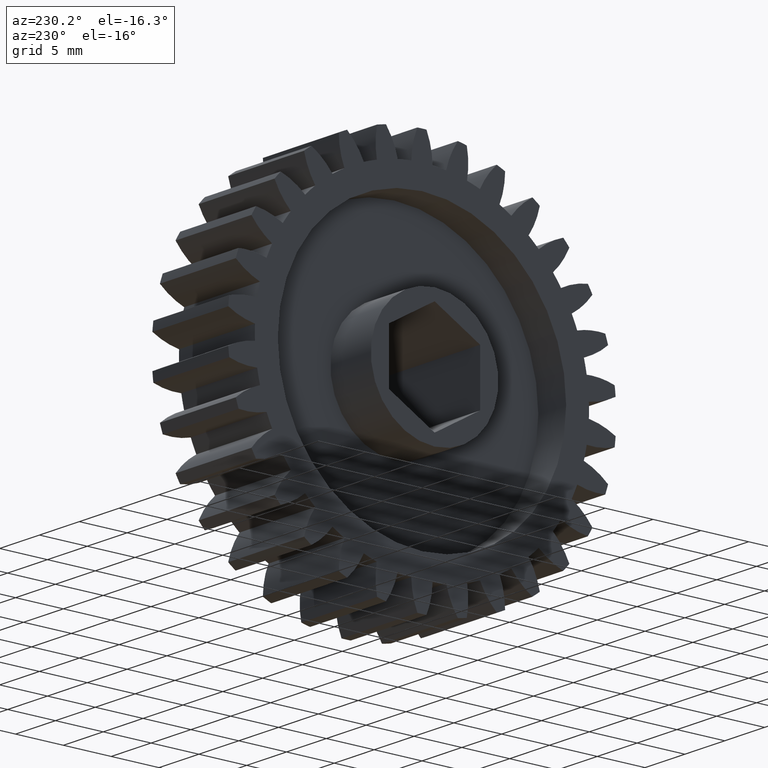
[diagram: clean part render]
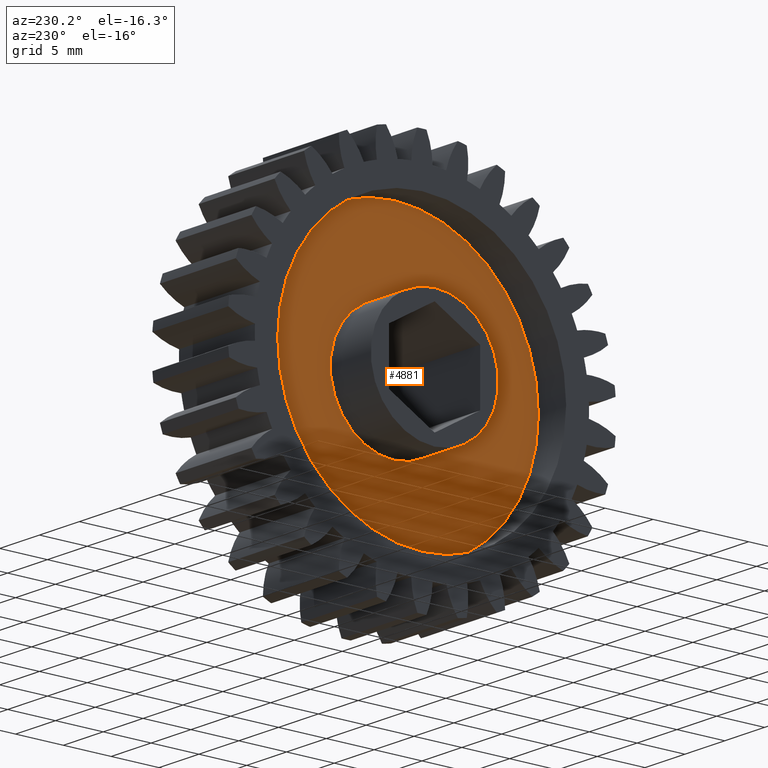
[diagram: same view with one face highlighted and labeled with its STEP entity id]
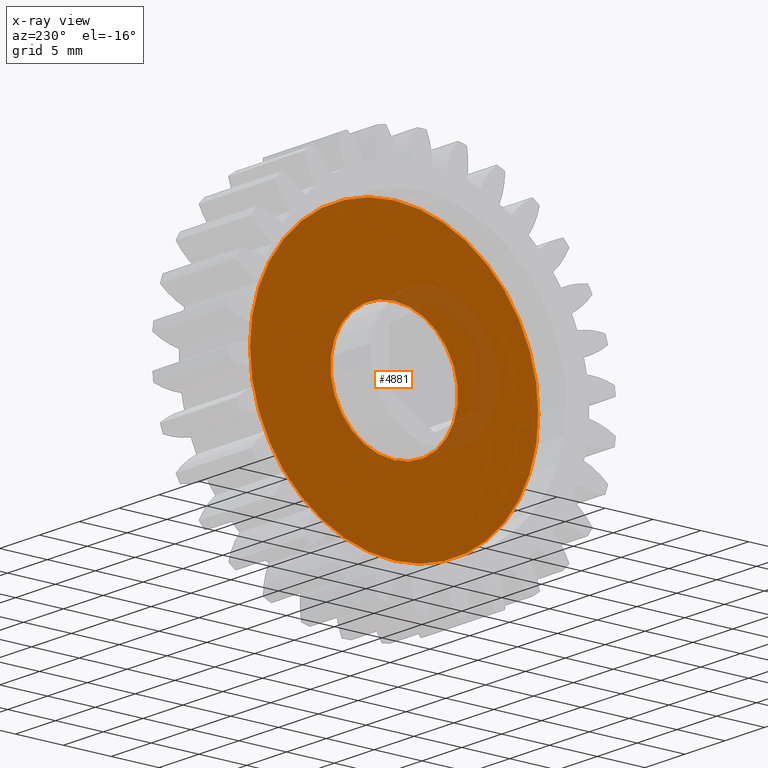
[diagram: x-ray of the same camera — body ghosted, the highlighted face saturated]
A machine part, auxiliary view. The second image highlights one B-rep face of the part: STEP entity #4881.
The next image is the same camera in x-ray: the body ghosted, the highlighted face saturated — about 7% of this face is hidden behind the body in this view.
In plain terms, the highlighted planar face has unit normal (1, -0, 0).
Its self-contained STEP definition (entity closure, byte-faithful):
#286 = EDGE_LOOP ( 'NONE', ( #3898, #4016 ) ) ;
#380 = CARTESIAN_POINT ( 'NONE',  ( 0.1375000000000000100, 7.271340369937410500E-017, -0.5937500000000000000 ) ) ;
#396 = AXIS2_PLACEMENT_3D ( 'NONE', #4599, #1832, #4604 ) ;
#439 = EDGE_CURVE ( 'NONE', #1454, #2017, #975, .T. ) ;
#668 = VERTEX_POINT ( 'NONE', #1508 ) ;
#888 = CARTESIAN_POINT ( 'NONE',  ( 0.1375000000000000100, 3.214697847761801800E-017, 0.2625000000000000100 ) ) ;
#945 = EDGE_CURVE ( 'NONE', #2017, #1454, #4955, .T. ) ;
#975 = CIRCLE ( 'NONE', #396, 0.5937500000000000000 ) ;
#1422 = AXIS2_PLACEMENT_3D ( 'NONE', #4724, #4809, #4672 ) ;
#1454 = VERTEX_POINT ( 'NONE', #380 ) ;
#1508 = CARTESIAN_POINT ( 'NONE',  ( 0.1375000000000000100, 0.0000000000000000000, -0.2625000000000000100 ) ) ;
#1832 = DIRECTION ( 'NONE',  ( 1.000000000000000000, -0.0000000000000000000, 0.0000000000000000000 ) ) ;
#1868 = EDGE_CURVE ( 'NONE', #2298, #668, #4757, .T. ) ;
#1921 = EDGE_CURVE ( 'NONE', #668, #2298, #4362, .T. ) ;
#2017 = VERTEX_POINT ( 'NONE', #3396 ) ;
#2298 = VERTEX_POINT ( 'NONE', #888 ) ;
#2569 = FACE_OUTER_BOUND ( 'NONE', #286, .T. ) ;
#3396 = CARTESIAN_POINT ( 'NONE',  ( 0.1375000000000000100, 0.0000000000000000000, 0.5937500000000000000 ) ) ;
#3612 = DIRECTION ( 'NONE',  ( 0.0000000000000000000, 0.0000000000000000000, -1.000000000000000000 ) ) ;
#3621 = DIRECTION ( 'NONE',  ( 1.000000000000000000, -0.0000000000000000000, 0.0000000000000000000 ) ) ;
#3630 = CARTESIAN_POINT ( 'NONE',  ( 0.1375000000000000100, 0.0000000000000000000, 0.0000000000000000000 ) ) ;
#3845 = EDGE_LOOP ( 'NONE', ( #4087, #4178 ) ) ;
#3898 = ORIENTED_EDGE ( 'NONE', *, *, #945, .F. ) ;
#4016 = ORIENTED_EDGE ( 'NONE', *, *, #439, .F. ) ;
#4079 = DIRECTION ( 'NONE',  ( 0.0000000000000000000, 0.0000000000000000000, -1.000000000000000000 ) ) ;
#4087 = ORIENTED_EDGE ( 'NONE', *, *, #1921, .T. ) ;
#4091 = DIRECTION ( 'NONE',  ( 1.000000000000000000, -0.0000000000000000000, 0.0000000000000000000 ) ) ;
#4095 = CARTESIAN_POINT ( 'NONE',  ( 0.1375000000000000100, 0.0000000000000000000, 0.0000000000000000000 ) ) ;
#4153 = AXIS2_PLACEMENT_3D ( 'NONE', #4095, #4091, #4079 ) ;
#4177 = AXIS2_PLACEMENT_3D ( 'NONE', #4495, #4482, #4463 ) ;
#4178 = ORIENTED_EDGE ( 'NONE', *, *, #1868, .T. ) ;
#4362 = CIRCLE ( 'NONE', #4153, 0.2625000000000000100 ) ;
#4463 = DIRECTION ( 'NONE',  ( 0.0000000000000000000, 0.0000000000000000000, -1.000000000000000000 ) ) ;
#4482 = DIRECTION ( 'NONE',  ( 1.000000000000000000, -0.0000000000000000000, 0.0000000000000000000 ) ) ;
#4495 = CARTESIAN_POINT ( 'NONE',  ( 0.1375000000000000100, 0.0000000000000000000, 0.0000000000000000000 ) ) ;
#4599 = CARTESIAN_POINT ( 'NONE',  ( 0.1375000000000000100, 0.0000000000000000000, 0.0000000000000000000 ) ) ;
#4604 = DIRECTION ( 'NONE',  ( 0.0000000000000000000, 0.0000000000000000000, -1.000000000000000000 ) ) ;
#4672 = DIRECTION ( 'NONE',  ( 0.0000000000000000000, 0.0000000000000000000, -1.000000000000000000 ) ) ;
#4678 = PLANE ( 'NONE',  #1422 ) ;
#4724 = CARTESIAN_POINT ( 'NONE',  ( 0.1375000000000000100, 0.0000000000000000000, 0.0000000000000000000 ) ) ;
#4757 = CIRCLE ( 'NONE', #4177, 0.2625000000000000100 ) ;
#4809 = DIRECTION ( 'NONE',  ( 1.000000000000000000, -0.0000000000000000000, 0.0000000000000000000 ) ) ;
#4881 = ADVANCED_FACE ( 'NONE', ( #2569, #4884 ), #4678, .F. ) ;
#4884 = FACE_BOUND ( 'NONE', #3845, .T. ) ;
#4955 = CIRCLE ( 'NONE', #4959, 0.5937500000000000000 ) ;
#4959 = AXIS2_PLACEMENT_3D ( 'NONE', #3630, #3621, #3612 ) ;